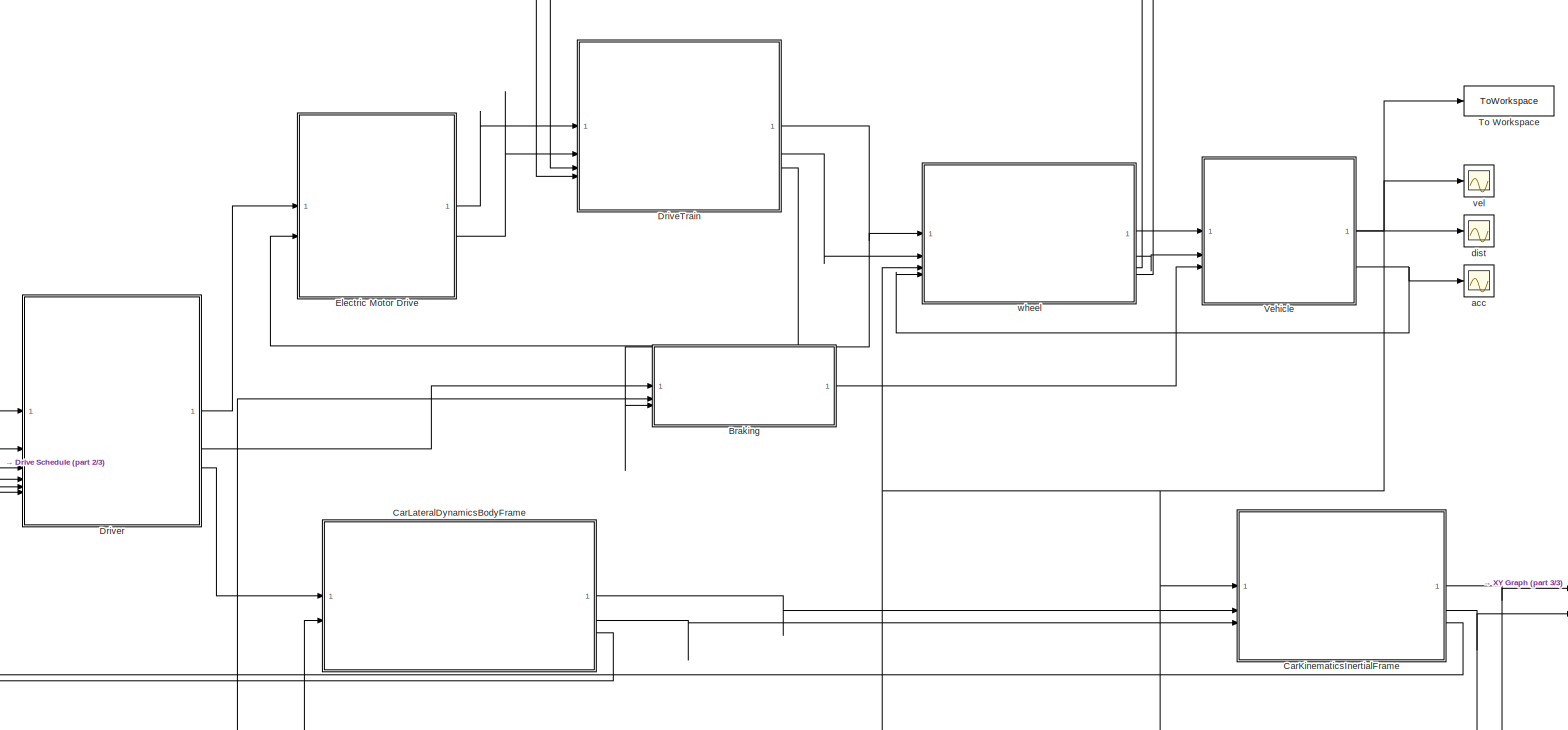
[diagram: root canvas - part 1/3, most of the canvas]
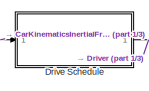
[diagram: root canvas - part 2/3, middle left region]
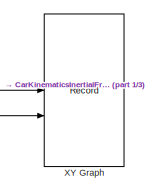
[diagram: root canvas - part 3/3, bottom right region]
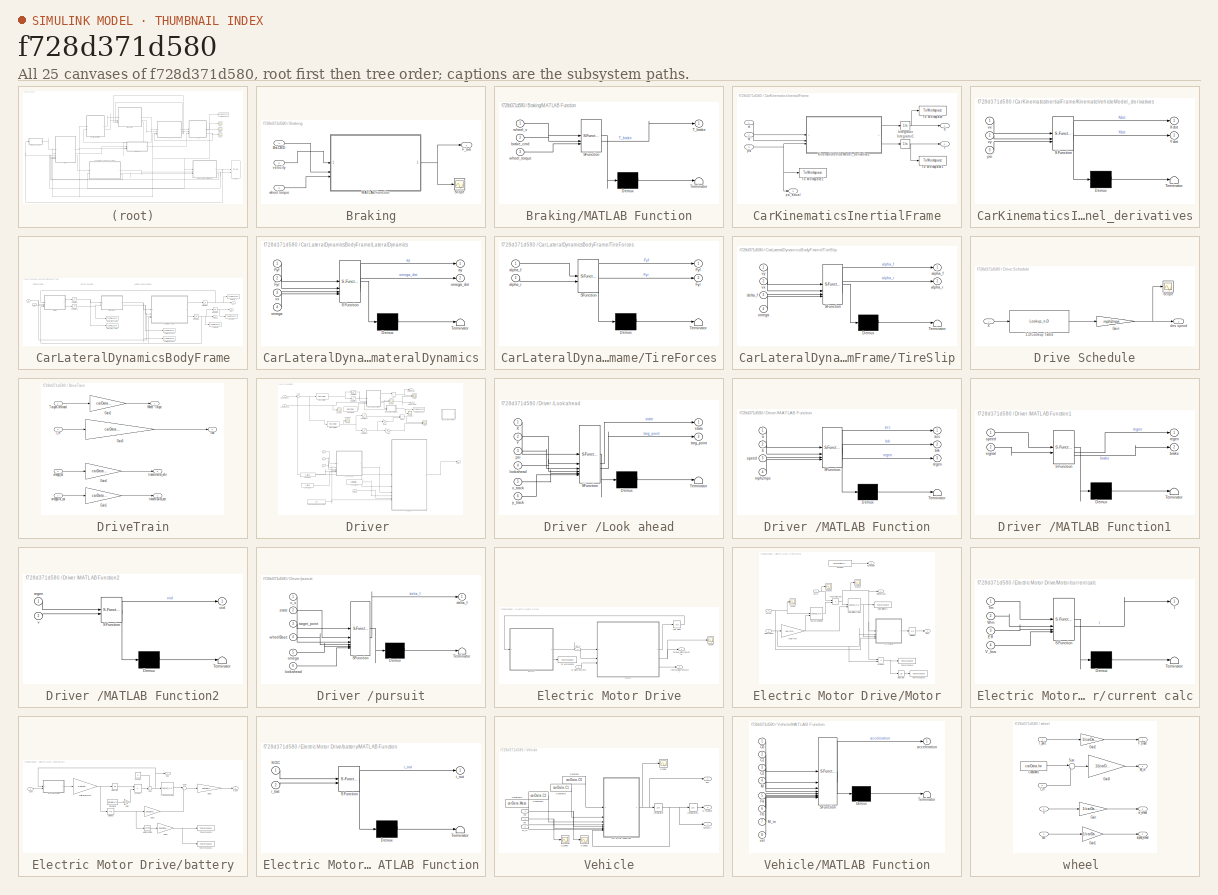
[diagram: thumbnail index - all 25 canvases of the model, root first then tree order]
MODEL slx_f728d371d580
KIND model
CONFIG AbsTol = auto
CONFIG EnableMultiTasking = off
CONFIG FixedStep = 0.01
CONFIG MaxStep = auto
CONFIG MinStep = auto
CONFIG RelTol = 1e-3
CONFIG SampleTimeConstraint = Unconstrained
CONFIG SolverName = FixedStepAuto
CONFIG StartTime = 0.0
CONFIG StopTime = 10
BLOCK [SubSystem] Braking
BLOCK [Inport] Braking/BrkCMD 
BLOCK [Outport] Braking/F_brk 
  VectorParamsAs1DForOutWhenUnconnected = off
BLOCK [SubSystem] Braking/MATLAB Function
  ErrorFcn = Stateflow.Translate.translate
  PermitHierarchicalResolution = ExplicitOnly
  SFBlockType = MATLAB Function
  TreatAsAtomicUnit = on
BLOCK [Demux] Braking/MATLAB Function/ Demux 
  Outputs = 1
BLOCK [S-Function] Braking/MATLAB Function/ SFunction 
  EnableBusSupport = on
  FunctionName = sf_sfun
  PortCounts = [3 2]
  SFcnIsStateOwnerBlock = off
  SFunctionDeploymentMode = off
  Tag = Stateflow S-Function 4
BLOCK [Terminator] Braking/MATLAB Function/ Terminator 
BLOCK [Outport] Braking/MATLAB Function/T_brake
BLOCK [Inport] Braking/MATLAB Function/brake_cmd
  Port = 2
BLOCK [Inport] Braking/MATLAB Function/wheel_torque
  Port = 3
BLOCK [Inport] Braking/MATLAB Function/wheel_v
BLOCK [Scope] Braking/Scope
  Floating = off
  NumInputPorts = 1
  ScopeSpecificationString = Simulink.scopes.TimeScopeBlockCfg('CurrentConfiguration', extmgr.ConfigurationSet(extmgr.Configuration('Core','General UI',true),extmgr.Configuration('Core','Source UI',true),extmgr.Configuration('Sources','WiredSimulink',true,'DataLoggingVariableName','ScopeData1'),extmgr.Configuration('Visuals','Time Domain',true,'SerializedDisplays',{struct('MinYLimReal','-1.00000','MaxYLimReal','1.00000','YLab...<+1405ch>
BLOCK [Inport] Braking/velocity 
  Port = 2
BLOCK [Inport] Braking/wheel torque
  Port = 3
BLOCK [SubSystem] CarKinematicsInertialFrame
BLOCK [Integrator] CarKinematicsInertialFrame/Integrator
  InitialCondition = carData.init.X0
BLOCK [Integrator] CarKinematicsInertialFrame/Integrator1
  InitialCondition = carData.init.Y0
BLOCK [SubSystem] CarKinematicsInertialFrame/KinematicVehicleModel_derivatives
  ErrorFcn = Stateflow.Translate.translate
  PermitHierarchicalResolution = ExplicitOnly
  SFBlockType = MATLAB Function
  TreatAsAtomicUnit = on
BLOCK [Demux] CarKinematicsInertialFrame/KinematicVehicleModel_derivatives/ Demux 
  Outputs = 1
BLOCK [S-Function] CarKinematicsInertialFrame/KinematicVehicleModel_derivatives/ SFunction 
  EnableBusSupport = on
  FunctionName = sf_sfun
  PortCounts = [3 3]
  SFcnIsStateOwnerBlock = off
  SFunctionDeploymentMode = off
  Tag = Stateflow S-Function 3
BLOCK [Terminator] CarKinematicsInertialFrame/KinematicVehicleModel_derivatives/ Terminator 
BLOCK [Outport] CarKinematicsInertialFrame/KinematicVehicleModel_derivatives/Xdot
BLOCK [Outport] CarKinematicsInertialFrame/KinematicVehicleModel_derivatives/Ydot
  Port = 2
BLOCK [Inport] CarKinematicsInertialFrame/KinematicVehicleModel_derivatives/psi
  Port = 3
BLOCK [Inport] CarKinematicsInertialFrame/KinematicVehicleModel_derivatives/vx
BLOCK [Inport] CarKinematicsInertialFrame/KinematicVehicleModel_derivatives/vy
  Port = 2
BLOCK [ToWorkspace] CarKinematicsInertialFrame/To Workspace
  FixptAsFi = on
  MaxDataPoints = inf
  SampleTime = 0.1
  SaveFormat = Timeseries
  VariableName = X_driven
BLOCK [ToWorkspace] CarKinematicsInertialFrame/To Workspace1
  FixptAsFi = on
  MaxDataPoints = inf
  SampleTime = 0.1
  SaveFormat = Timeseries
  VariableName = Y_driven
BLOCK [ToWorkspace] CarKinematicsInertialFrame/To Workspace2
  FixptAsFi = on
  MaxDataPoints = inf
  SampleTime = 0.1
  SaveFormat = Timeseries
  VariableName = Psi_driven
BLOCK [Outport] CarKinematicsInertialFrame/X
BLOCK [Outport] CarKinematicsInertialFrame/Y
  Port = 2
BLOCK [Inport] CarKinematicsInertialFrame/psi
  Port = 3
BLOCK [Outport] CarKinematicsInertialFrame/psi_actual
  Port = 3
BLOCK [Inport] CarKinematicsInertialFrame/vx
BLOCK [Inport] CarKinematicsInertialFrame/vy
  Port = 2
BLOCK [SubSystem] CarLateralDynamicsBodyFrame
BLOCK [ToWorkspace] CarLateralDynamicsBodyFrame/Front_Slip_Angle
  FixptAsFi = on
  MaxDataPoints = inf
  SampleTime = 0.01
  SaveFormat = Timeseries
  VariableName = alpha_f
BLOCK [ToWorkspace] CarLateralDynamicsBodyFrame/Heading
  FixptAsFi = on
  MaxDataPoints = inf
  SampleTime = 0.01
  SaveFormat = Timeseries
  VariableName = psi
BLOCK [Integrator] CarLateralDynamicsBodyFrame/Integrator
  InitialCondition = carData.init.vy0
BLOCK [Integrator] CarLateralDynamicsBodyFrame/Integrator1
  InitialCondition = carData.init.omega0
BLOCK [Integrator] CarLateralDynamicsBodyFrame/Integrator2
  InitialCondition = carData.init.psi0
BLOCK [SubSystem] CarLateralDynamicsBodyFrame/LateralDynamics
  ErrorFcn = Stateflow.Translate.translate
  PermitHierarchicalResolution = ExplicitOnly
  SFBlockType = MATLAB Function
  TreatAsAtomicUnit = on
BLOCK [Demux] CarLateralDynamicsBodyFrame/LateralDynamics/ Demux 
  Outputs = 1
BLOCK [S-Function] CarLateralDynamicsBodyFrame/LateralDynamics/ SFunction 
  EnableBusSupport = on
  FunctionName = sf_sfun
  Parameters = obj
  PortCounts = [4 3]
  SFcnIsStateOwnerBlock = off
  SFunctionDeploymentMode = off
  Tag = Stateflow S-Function 1
BLOCK [Terminator] CarLateralDynamicsBodyFrame/LateralDynamics/ Terminator 
BLOCK [Inport] CarLateralDynamicsBodyFrame/LateralDynamics/Fyf
BLOCK [Inport] CarLateralDynamicsBodyFrame/LateralDynamics/Fyr
  Port = 2
BLOCK [Outport] CarLateralDynamicsBodyFrame/LateralDynamics/ay
BLOCK [Inport] CarLateralDynamicsBodyFrame/LateralDynamics/omega
  Port = 4
BLOCK [Outport] CarLateralDynamicsBodyFrame/LateralDynamics/omega_dot
  Port = 2
BLOCK [Inport] CarLateralDynamicsBodyFrame/LateralDynamics/vx
  Port = 3
BLOCK [ToWorkspace] CarLateralDynamicsBodyFrame/Rear_Slip_Angle
  FixptAsFi = on
  MaxDataPoints = inf
  SampleTime = 0.01
  SaveFormat = Timeseries
  VariableName = alpha_r
BLOCK [Saturate] CarLateralDynamicsBodyFrame/Saturation
  LowerLimit = -carData.maxAlpha
  UpperLimit = carData.maxAlpha
BLOCK [Saturate] CarLateralDynamicsBodyFrame/Saturation1
  LowerLimit = -carData.maxAlpha
  UpperLimit = carData.maxAlpha
BLOCK [SubSystem] CarLateralDynamicsBodyFrame/TireForces
  ErrorFcn = Stateflow.Translate.translate
  PermitHierarchicalResolution = ExplicitOnly
  SFBlockType = MATLAB Function
  TreatAsAtomicUnit = on
BLOCK [Demux] CarLateralDynamicsBodyFrame/TireForces/ Demux 
  Outputs = 1
BLOCK [S-Function] CarLateralDynamicsBodyFrame/TireForces/ SFunction 
  EnableBusSupport = on
  FunctionName = sf_sfun
  Parameters = obj
  PortCounts = [2 3]
  SFcnIsStateOwnerBlock = off
  SFunctionDeploymentMode = off
  Tag = Stateflow S-Function 7
BLOCK [Terminator] CarLateralDynamicsBodyFrame/TireForces/ Terminator 
BLOCK [Outport] CarLateralDynamicsBodyFrame/TireForces/Fyf
BLOCK [Outport] CarLateralDynamicsBodyFrame/TireForces/Fyr
  Port = 2
BLOCK [Inport] CarLateralDynamicsBodyFrame/TireForces/alpha_f
BLOCK [Inport] CarLateralDynamicsBodyFrame/TireForces/alpha_r
  Port = 2
BLOCK [SubSystem] CarLateralDynamicsBodyFrame/TireSlip
  ErrorFcn = Stateflow.Translate.translate
  PermitHierarchicalResolution = ExplicitOnly
  SFBlockType = MATLAB Function
  TreatAsAtomicUnit = on
BLOCK [Demux] CarLateralDynamicsBodyFrame/TireSlip/ Demux 
  Outputs = 1
BLOCK [S-Function] CarLateralDynamicsBodyFrame/TireSlip/ SFunction 
  EnableBusSupport = on
  FunctionName = sf_sfun
  Parameters = obj
  PortCounts = [4 3]
  SFcnIsStateOwnerBlock = off
  SFunctionDeploymentMode = off
  Tag = Stateflow S-Function 6
BLOCK [Terminator] CarLateralDynamicsBodyFrame/TireSlip/ Terminator 
BLOCK [Outport] CarLateralDynamicsBodyFrame/TireSlip/alpha_f
BLOCK [Outport] CarLateralDynamicsBodyFrame/TireSlip/alpha_r
  Port = 2
BLOCK [Inport] CarLateralDynamicsBodyFrame/TireSlip/delta_f
  Port = 3
BLOCK [Inport] CarLateralDynamicsBodyFrame/TireSlip/omega
  Port = 4
BLOCK [Inport] CarLateralDynamicsBodyFrame/TireSlip/vx
  Port = 2
BLOCK [Inport] CarLateralDynamicsBodyFrame/TireSlip/vy
BLOCK [ToWorkspace] CarLateralDynamicsBodyFrame/To Workspace5
  FixptAsFi = on
  MaxDataPoints = inf
  SampleTime = 0.01
  SaveFormat = Timeseries
  VariableName = Fyf
BLOCK [ToWorkspace] CarLateralDynamicsBodyFrame/To Workspace6
  FixptAsFi = on
  MaxDataPoints = inf
  SampleTime = 0.01
  SaveFormat = Timeseries
  VariableName = Fyr
BLOCK [ToWorkspace] CarLateralDynamicsBodyFrame/Velocity_Y
  FixptAsFi = on
  MaxDataPoints = inf
  SampleTime = 0.01
  SaveFormat = Timeseries
  VariableName = vy
BLOCK [ToWorkspace] CarLateralDynamicsBodyFrame/Yaw Rate
  FixptAsFi = on
  MaxDataPoints = inf
  SampleTime = 0.01
  SaveFormat = Timeseries
  VariableName = omega
BLOCK [Inport] CarLateralDynamicsBodyFrame/delta_f
BLOCK [Outport] CarLateralDynamicsBodyFrame/omega
  Port = 3
BLOCK [Outport] CarLateralDynamicsBodyFrame/psi
  Port = 2
BLOCK [Inport] CarLateralDynamicsBodyFrame/vx
  Port = 2
BLOCK [Outport] CarLateralDynamicsBodyFrame/vy
BLOCK [SubSystem] Drive Schedule
BLOCK [Lookup_n-D] Drive Schedule/1-D Lookup Table
  BreakpointsForDimension1 = test_position
  InputPortMap = u0
  InternalRulePriority = Speed
  NumberOfTableDimensions = 1
  RndMeth = Simplest
  Table = test_speed
BLOCK [Gain] Drive Schedule/Gain
  Gain = mph2mps
BLOCK [Scope] Drive Schedule/Scope
  Floating = off
  NumInputPorts = 1
  ScopeSpecificationString = Simulink.scopes.TimeScopeBlockCfg('CurrentConfiguration', extmgr.ConfigurationSet(extmgr.Configuration('Core','General UI',true),extmgr.Configuration('Core','Source UI',true),extmgr.Configuration('Sources','WiredSimulink',true,'DataLoggingVariableName','ScopeData4'),extmgr.Configuration('Visuals','Time Domain',true,'SerializedDisplays',{struct('MinYLimReal','-23.33333','MaxYLimReal','298.88889','Y...<+1439ch>
BLOCK [Inport] Drive Schedule/X
BLOCK [Outport] Drive Schedule/des speed 
  VectorParamsAs1DForOutWhenUnconnected = off
BLOCK [SubSystem] DriveTrain
BLOCK [Gain] DriveTrain/Gain1
  Gain = carData.FDG
BLOCK [Gain] DriveTrain/Gain2
  Gain = carData.FDG
BLOCK [Gain] DriveTrain/Gain3
  Gain = carData.FDG*carData.FDG
BLOCK [Gain] DriveTrain/Gain4
  Gain = carData.FDG
BLOCK [Inport] DriveTrain/I_in
  Port = 2
BLOCK [Outport] DriveTrain/Iout
  Port = 2
BLOCK [Inport] DriveTrain/TorqueCommand
BLOCK [Outport] DriveTrain/Wheel Torque
BLOCK [Inport] DriveTrain/omegaDot_out
  Port = 4
BLOCK [Inport] DriveTrain/omega_out
  Port = 3
BLOCK [Outport] DriveTrain/transmission_acc
  Port = 4
BLOCK [Outport] DriveTrain/transmission_velo
  Port = 3
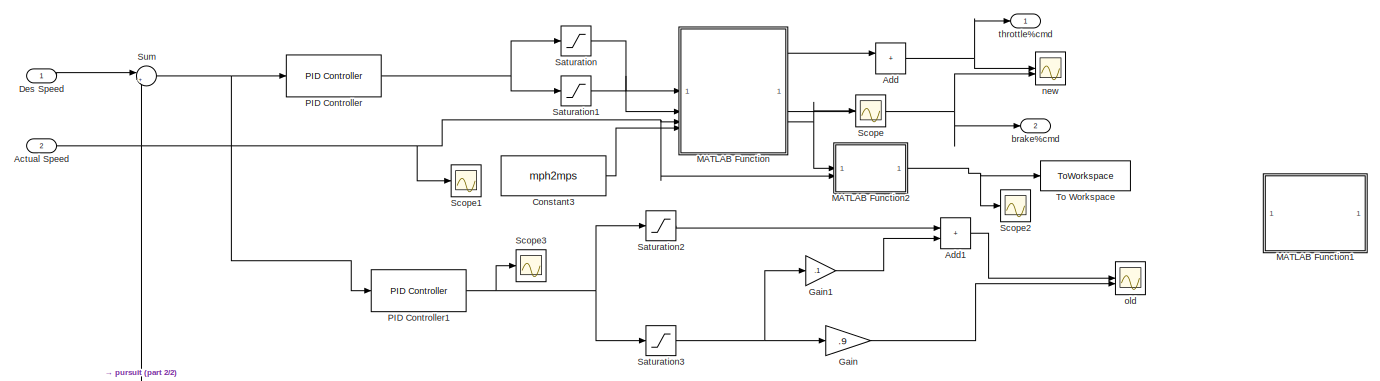
[diagram: Driver  - part 1/2, full width, top band]
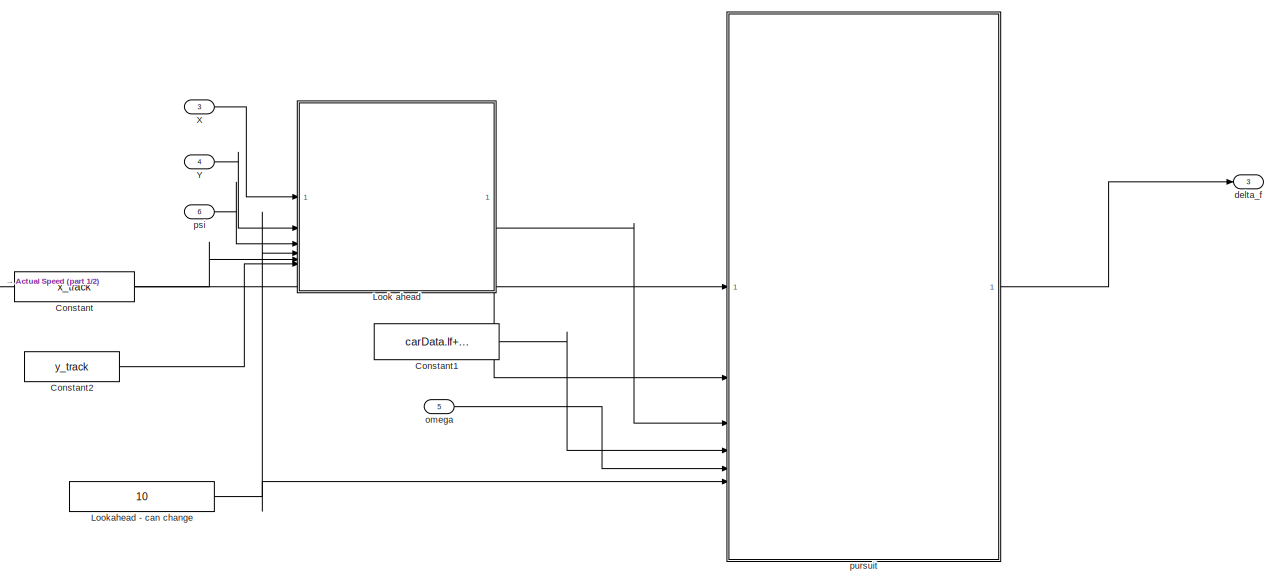
[diagram: Driver  - part 2/2, full width, bottom band]
BLOCK [SubSystem] Driver 
BLOCK [Inport] Driver /Actual Speed
  Port = 2
BLOCK [Sum] Driver /Add
  IconShape = rectangular
BLOCK [Sum] Driver /Add1
  Commented = on
  IconShape = rectangular
BLOCK [Constant] Driver /Constant
  Value = x_track
BLOCK [Constant] Driver /Constant1
  Value = carData.lf+carData.lr
BLOCK [Constant] Driver /Constant2
  Value = y_track
BLOCK [Constant] Driver /Constant3
  Value = mph2mps
BLOCK [Inport] Driver /Des Speed 
BLOCK [Gain] Driver /Gain
  Commented = on
  Gain = .9
BLOCK [Gain] Driver /Gain1
  Commented = on
  Gain = .1
BLOCK [SubSystem] Driver /Look ahead
  ErrorFcn = Stateflow.Translate.translate
  PermitHierarchicalResolution = ExplicitOnly
  SFBlockType = MATLAB Function
  TreatAsAtomicUnit = on
BLOCK [Demux] Driver /Look ahead/ Demux 
  Outputs = 1
BLOCK [S-Function] Driver /Look ahead/ SFunction 
  EnableBusSupport = on
  FunctionName = sf_sfun
  PortCounts = [6 3]
  SFcnIsStateOwnerBlock = off
  SFunctionDeploymentMode = off
  Tag = Stateflow S-Function 10
BLOCK [Terminator] Driver /Look ahead/ Terminator 
BLOCK [Inport] Driver /Look ahead/X
BLOCK [Inport] Driver /Look ahead/Y
  Port = 2
BLOCK [Inport] Driver /Look ahead/lookahead
  Port = 4
BLOCK [Inport] Driver /Look ahead/psi
  Port = 3
BLOCK [Outport] Driver /Look ahead/state
BLOCK [Outport] Driver /Look ahead/targ_point
  Port = 2
BLOCK [Inport] Driver /Look ahead/x_track
  Port = 5
BLOCK [Inport] Driver /Look ahead/y_track
  Port = 6
BLOCK [Constant] Driver /Lookahead - can change
  Value = 10
BLOCK [SubSystem] Driver /MATLAB Function
  ErrorFcn = Stateflow.Translate.translate
  PermitHierarchicalResolution = ExplicitOnly
  SFBlockType = MATLAB Function
  TreatAsAtomicUnit = on
BLOCK [Demux] Driver /MATLAB Function/ Demux 
  Outputs = 1
BLOCK [S-Function] Driver /MATLAB Function/ SFunction 
  EnableBusSupport = on
  FunctionName = sf_sfun
  PortCounts = [4 4]
  SFcnIsStateOwnerBlock = off
  SFunctionDeploymentMode = off
  Tag = Stateflow S-Function 9
BLOCK [Terminator] Driver /MATLAB Function/ Terminator 
BLOCK [Inport] Driver /MATLAB Function/a
BLOCK [Outport] Driver /MATLAB Function/acc
BLOCK [Inport] Driver /MATLAB Function/b
  Port = 2
BLOCK [Outport] Driver /MATLAB Function/brk
  Port = 2
BLOCK [Inport] Driver /MATLAB Function/mph2mps
  Port = 4
BLOCK [Outport] Driver /MATLAB Function/regen
  Port = 3
BLOCK [Inport] Driver /MATLAB Function/speed
  Port = 3
BLOCK [SubSystem] Driver /MATLAB Function1
  Commented = on
  ErrorFcn = Stateflow.Translate.translate
  PermitHierarchicalResolution = ExplicitOnly
  SFBlockType = MATLAB Function
  TreatAsAtomicUnit = on
BLOCK [Demux] Driver /MATLAB Function1/ Demux 
  Outputs = 1
BLOCK [S-Function] Driver /MATLAB Function1/ SFunction 
  EnableBusSupport = on
  FunctionName = sf_sfun
  PortCounts = [2 3]
  SFcnIsStateOwnerBlock = off
  SFunctionDeploymentMode = off
  Tag = Stateflow S-Function 12
BLOCK [Terminator] Driver /MATLAB Function1/ Terminator 
BLOCK [Outport] Driver /MATLAB Function1/brake
  Port = 2
BLOCK [Outport] Driver /MATLAB Function1/regen
BLOCK [Inport] Driver /MATLAB Function1/signal
  Port = 2
BLOCK [Inport] Driver /MATLAB Function1/speed
BLOCK [SubSystem] Driver /MATLAB Function2
  ErrorFcn = Stateflow.Translate.translate
  PermitHierarchicalResolution = ExplicitOnly
  SFBlockType = MATLAB Function
  TreatAsAtomicUnit = on
BLOCK [Demux] Driver /MATLAB Function2/ Demux 
  Outputs = 1
BLOCK [S-Function] Driver /MATLAB Function2/ SFunction 
  EnableBusSupport = on
  FunctionName = sf_sfun
  PortCounts = [2 2]
  SFcnIsStateOwnerBlock = off
  SFunctionDeploymentMode = off
  Tag = Stateflow S-Function 13
BLOCK [Terminator] Driver /MATLAB Function2/ Terminator 
BLOCK [Inport] Driver /MATLAB Function2/regen
BLOCK [Inport] Driver /MATLAB Function2/v
  Port = 2
BLOCK [Outport] Driver /MATLAB Function2/viol
BLOCK [Reference] Driver /PID Controller  REF=slpidlib/PID Controller
  SourceBlock = slpidlib/PID Controller
  SourceType = PID 1dof
BLOCK [Reference] Driver /PID Controller1  REF=slpidlib/PID Controller
  Commented = on
  SourceBlock = slpidlib/PID Controller
  SourceType = PID 1dof
BLOCK [Saturate] Driver /Saturation
  LowerLimit = 0
  UpperLimit = 1
BLOCK [Saturate] Driver /Saturation1
  LowerLimit = -1
  UpperLimit = 0
BLOCK [Saturate] Driver /Saturation2
  Commented = on
  LowerLimit = 0
  UpperLimit = 1
BLOCK [Saturate] Driver /Saturation3
  Commented = on
  LowerLimit = -1
  UpperLimit = 0
BLOCK [Scope] Driver /Scope
  Commented = on
  Floating = off
  NumInputPorts = 1
  ScopeSpecificationString = Simulink.scopes.TimeScopeBlockCfg('CurrentConfiguration', extmgr.ConfigurationSet(extmgr.Configuration('Core','General UI',true),extmgr.Configuration('Core','Source UI',true),extmgr.Configuration('Sources','WiredSimulink',true,'DataLoggingVariableName','ScopeData8'),extmgr.Configuration('Visuals','Time Domain',true,'SerializedDisplays',{struct('MinYLimReal','-0.03719','MaxYLimReal','0.33472','YLab...<+1467ch>
BLOCK [Scope] Driver /Scope1
  Commented = on
  Floating = off
  NumInputPorts = 1
  ScopeSpecificationString = Simulink.scopes.TimeScopeBlockCfg('CurrentConfiguration', extmgr.ConfigurationSet(extmgr.Configuration('Core','General UI',true),extmgr.Configuration('Core','Source UI',true),extmgr.Configuration('Sources','WiredSimulink',true,'DataLoggingVariableName','ScopeData2'),extmgr.Configuration('Visuals','Time Domain',true,'SerializedDisplays',{struct('MinYLimReal','-1.40797','MaxYLimReal','12.67176','YLa...<+1427ch>
BLOCK [Scope] Driver /Scope2
  Commented = on
  Floating = off
  NumInputPorts = 1
  ScopeSpecificationString = Simulink.scopes.TimeScopeBlockCfg('CurrentConfiguration', extmgr.ConfigurationSet(extmgr.Configuration('Core','General UI',true),extmgr.Configuration('Core','Source UI',true),extmgr.Configuration('Sources','WiredSimulink',true,'DataLoggingVariableName','ScopeData9'),extmgr.Configuration('Visuals','Time Domain',true,'SerializedDisplays',{struct('MinYLimReal','-0.125','MaxYLimReal','1.125','YLabelRe...<+1415ch>
BLOCK [Scope] Driver /Scope3
  Commented = on
  Floating = off
  NumInputPorts = 1
  ScopeSpecificationString = Simulink.scopes.TimeScopeBlockCfg('CurrentConfiguration', extmgr.ConfigurationSet(extmgr.Configuration('Core','General UI',true),extmgr.Configuration('Core','Source UI',true),extmgr.Configuration('Sources','WiredSimulink',true,'DataLoggingVariableName','ScopeData7'),extmgr.Configuration('Visuals','Time Domain',true,'SerializedDisplays',{struct('MinYLimReal','-0.39088','MaxYLimReal','1.15454','YLab...<+1405ch>
BLOCK [Sum] Driver /Sum
  Inputs = |+-
BLOCK [ToWorkspace] Driver /To Workspace
  FixptAsFi = on
  MaxDataPoints = inf
  SampleTime = 0.01
  SaveFormat = Timeseries
  VariableName = brake_viol
BLOCK [Inport] Driver /X
  Port = 3
BLOCK [Inport] Driver /Y
  Port = 4
BLOCK [Outport] Driver /brake%cmd 
  Port = 2
BLOCK [Outport] Driver /delta_f
  NameLocation = right
  Port = 3
BLOCK [Scope] Driver /new
  Floating = off
  NumInputPorts = 2
  ScopeSpecificationString = Simulink.scopes.TimeScopeBlockCfg('CurrentConfiguration', extmgr.ConfigurationSet(extmgr.Configuration('Core','General UI',true),extmgr.Configuration('Core','Source UI',true),extmgr.Configuration('Sources','WiredSimulink',true,'DataLoggingVariableName','ScopeData1'),extmgr.Configuration('Visuals','Time Domain',true,'SerializedDisplays',{struct('MinYLimReal','-0.125','MaxYLimReal','1.125','YLabelRe...<+1448ch>
BLOCK [Scope] Driver /old
  Commented = on
  Floating = off
  NumInputPorts = 2
  ScopeSpecificationString = Simulink.scopes.TimeScopeBlockCfg('CurrentConfiguration', extmgr.ConfigurationSet(extmgr.Configuration('Core','General UI',true),extmgr.Configuration('Core','Source UI',true),extmgr.Configuration('Sources','WiredSimulink',true,'DataLoggingVariableName','ScopeData6'),extmgr.Configuration('Visuals','Time Domain',true,'SerializedDisplays',{struct('MinYLimReal','-0.36429','MaxYLimReal','1.15159','YLab...<+1446ch>
BLOCK [Inport] Driver /omega
  Port = 5
BLOCK [Inport] Driver /psi
  Port = 6
BLOCK [SubSystem] Driver /pursuit
  ErrorFcn = Stateflow.Translate.translate
  PermitHierarchicalResolution = ExplicitOnly
  SFBlockType = MATLAB Function
  TreatAsAtomicUnit = on
BLOCK [Demux] Driver /pursuit/ Demux 
  Outputs = 1
BLOCK [S-Function] Driver /pursuit/ SFunction 
  EnableBusSupport = on
  FunctionName = sf_sfun
  PortCounts = [6 2]
  SFcnIsStateOwnerBlock = off
  SFunctionDeploymentMode = off
  Tag = Stateflow S-Function 2
BLOCK [Terminator] Driver /pursuit/ Terminator 
BLOCK [Outport] Driver /pursuit/delta_f
BLOCK [Inport] Driver /pursuit/lookahead
  Port = 6
BLOCK [Inport] Driver /pursuit/omega
  Port = 5
BLOCK [Inport] Driver /pursuit/state
  Port = 2
BLOCK [Inport] Driver /pursuit/target_point
  Port = 3
BLOCK [Inport] Driver /pursuit/v_x
BLOCK [Inport] Driver /pursuit/wheelBase
  Port = 4
BLOCK [Outport] Driver /throttle%cmd
BLOCK [SubSystem] Electric Motor Drive
  TreatAsAtomicUnit = on
BLOCK [Inport] Electric Motor Drive/APP %
BLOCK [Outport] Electric Motor Drive/Inertia_ElectricMotor
  Port = 2
BLOCK [SubSystem] Electric Motor Drive/Motor
  TreatAsAtomicUnit = on
BLOCK [Constant] Electric Motor Drive/Motor/Constant
  Value = motorData.Inertia
BLOCK [Outport] Electric Motor Drive/Motor/I bus
BLOCK [Integrator] Electric Motor Drive/Motor/Integrator
BLOCK [Product] Electric Motor Drive/Motor/Product
BLOCK [Scope] Electric Motor Drive/Motor/Scope
  Floating = off
  NumInputPorts = 1
  ScopeSpecificationString = Simulink.scopes.TimeScopeBlockCfg('CurrentConfiguration', extmgr.ConfigurationSet(extmgr.Configuration('Core','General UI',true),extmgr.Configuration('Core','Source UI',true),extmgr.Configuration('Sources','WiredSimulink',true,'DataLoggingVariableName','ScopeData3'),extmgr.Configuration('Visuals','Time Domain',true,'SerializedDisplays',{struct('MinYLimReal','372.93115','MaxYLimReal','379.89654','Y...<+1412ch>
BLOCK [Scope] Electric Motor Drive/Motor/Scope1
  Floating = off
  NumInputPorts = 1
  ScopeSpecificationString = Simulink.scopes.TimeScopeBlockCfg('CurrentConfiguration', extmgr.ConfigurationSet(extmgr.Configuration('Core','General UI',true),extmgr.Configuration('Core','Source UI',true),extmgr.Configuration('Sources','WiredSimulink',true,'DataLoggingVariableName','ScopeData4'),extmgr.Configuration('Visuals','Time Domain',true,'SerializedDisplays',{struct('MinYLimReal','-35.00000','MaxYLimReal','315.00000','Y...<+1414ch>
BLOCK [Scope] Electric Motor Drive/Motor/Scope2
  Floating = off
  NumInputPorts = 1
  ScopeSpecificationString = Simulink.scopes.TimeScopeBlockCfg('CurrentConfiguration', extmgr.ConfigurationSet(extmgr.Configuration('Core','General UI',true),extmgr.Configuration('Core','Source UI',true),extmgr.Configuration('Sources','WiredSimulink',true,'DataLoggingVariableName','ScopeData5'),extmgr.Configuration('Visuals','Time Domain',true,'SerializedDisplays',{struct('MinYLimReal','-0.125','MaxYLimReal','1.125','YLabelRe...<+1415ch>
BLOCK [ToWorkspace] Electric Motor Drive/Motor/To Workspace
  FixptAsFi = on
  MaxDataPoints = inf
  SampleTime = 0.01
  SaveFormat = Timeseries
  VariableName = motor_power
BLOCK [ToWorkspace] Electric Motor Drive/Motor/To Workspace1
  FixptAsFi = on
  MaxDataPoints = inf
  SampleTime = 0.01
  SaveFormat = Timeseries
  VariableName = motor_energy
BLOCK [UnitDelay] Electric Motor Drive/Motor/Unit Delay
  HasFrameUpgradeWarning = on
  SampleTime = -1
BLOCK [Inport] Electric Motor Drive/Motor/acc%
  Port = 2
BLOCK [Inport] Electric Motor Drive/Motor/bus volt
BLOCK [SubSystem] Electric Motor Drive/Motor/current calc
  ErrorFcn = Stateflow.Translate.translate
  PermitHierarchicalResolution = ExplicitOnly
  SFBlockType = MATLAB Function
  TreatAsAtomicUnit = on
BLOCK [Demux] Electric Motor Drive/Motor/current calc/ Demux 
  Outputs = 1
BLOCK [S-Function] Electric Motor Drive/Motor/current calc/ SFunction 
  EnableBusSupport = on
  FunctionName = sf_sfun
  PortCounts = [4 2]
  SFcnIsStateOwnerBlock = off
  SFunctionDeploymentMode = off
  Tag = Stateflow S-Function 5
BLOCK [Terminator] Electric Motor Drive/Motor/current calc/ Terminator 
BLOCK [Inport] Electric Motor Drive/Motor/current calc/Eff
  Port = 3
BLOCK [Outport] Electric Motor Drive/Motor/current calc/I
BLOCK [Inport] Electric Motor Drive/Motor/current calc/Tm
BLOCK [Inport] Electric Motor Drive/Motor/current calc/V_bus
  Port = 4
BLOCK [Inport] Electric Motor Drive/Motor/current calc/Wm
  Port = 2
BLOCK [Outport] Electric Motor Drive/Motor/inertia motor
  Port = 3
BLOCK [Lookup_n-D] Electric Motor Drive/Motor/max-torque table
  BreakpointsForDimension1 = motorData.vbus
  BreakpointsForDimension2 = motorData.rpm
  BreakpointsForDimension3 = [5, 7]
  InputPortMap = u0,u1
  InternalRulePriority = Speed
  RndMeth = Simplest
  Table = motorData.maxtorque
BLOCK [ToWorkspace] Electric Motor Drive/Motor/motor efficiency
  FixptAsFi = on
  MaxDataPoints = inf
  SampleTime = 0.01
  SaveFormat = Timeseries
  VariableName = motor_efficiency
BLOCK [Lookup_n-D] Electric Motor Drive/Motor/motor efficiency table
  BreakpointsForDimension1 = motorData.eta_torque
  BreakpointsForDimension2 = motorData.eta_speed
  BreakpointsForDimension3 = [5, 7]
  InputPortMap = u0,u1
  InternalRulePriority = Speed
  RndMeth = Simplest
  Table = motorData.eta_val
BLOCK [Inport] Electric Motor Drive/Motor/motor speed
  Port = 3
BLOCK [Outport] Electric Motor Drive/Motor/motor torque
  Port = 2
BLOCK [Gain] Electric Motor Drive/Motor/rad//s>rpm
  Gain = 60/(2*pi)
BLOCK [Product] Electric Motor Drive/Motor/reduced torque
BLOCK [Scope] Electric Motor Drive/Scope
  Floating = off
  NumInputPorts = 1
  ScopeSpecificationString = Simulink.scopes.TimeScopeBlockCfg('CurrentConfiguration', extmgr.ConfigurationSet(extmgr.Configuration('Core','General UI',true),extmgr.Configuration('Core','Source UI',true),extmgr.Configuration('Sources','WiredSimulink',true),extmgr.Configuration('Visuals','Time Domain',true,'SerializedDisplays',{struct('MinYLimReal','-35.00000','MaxYLimReal','315.00000','YLabelReal','','MinYLimMag','0.00000','M...<+1370ch>
BLOCK [ToWorkspace] Electric Motor Drive/To Workspace
  FixptAsFi = on
  MaxDataPoints = inf
  SampleTime = 0.01
  SaveFormat = Timeseries
  VariableName = SOC
BLOCK [Outport] Electric Motor Drive/Torque_ElectricMotor
BLOCK [UnitDelay] Electric Motor Drive/Unit Delay
  HasFrameUpgradeWarning = on
  SampleTime = -1
BLOCK [Inport] Electric Motor Drive/W_ElectricMotor
  Port = 2
BLOCK [SubSystem] Electric Motor Drive/battery
  TreatAsAtomicUnit = on
BLOCK [Constant] Electric Motor Drive/battery/Constant
  Value = .8
BLOCK [Constant] Electric Motor Drive/battery/Constant1
  Value = batData.C
BLOCK [Gain] Electric Motor Drive/battery/Gain
  Gain = 3600/batData.numParallel
BLOCK [Gain] Electric Motor Drive/battery/Gain1
  Gain = batData.Rint
BLOCK [Gain] Electric Motor Drive/battery/Gain2
  Gain = batData.numSeries
BLOCK [Gain] Electric Motor Drive/battery/Gain3
  Gain = batData.Rint
BLOCK [Inport] Electric Motor Drive/battery/I_bat
BLOCK [Integrator] Electric Motor Drive/battery/Integrator
BLOCK [SubSystem] Electric Motor Drive/battery/MATLAB Function
  ErrorFcn = Stateflow.Translate.translate
  PermitHierarchicalResolution = ExplicitOnly
  SFBlockType = MATLAB Function
  TreatAsAtomicUnit = on
BLOCK [Demux] Electric Motor Drive/battery/MATLAB Function/ Demux 
  Outputs = 1
BLOCK [S-Function] Electric Motor Drive/battery/MATLAB Function/ SFunction 
  EnableBusSupport = on
  FunctionName = sf_sfun
  PortCounts = [2 2]
  SFcnIsStateOwnerBlock = off
  SFunctionDeploymentMode = off
  Tag = Stateflow S-Function 11
BLOCK [Terminator] Electric Motor Drive/battery/MATLAB Function/ Terminator 
BLOCK [Inport] Electric Motor Drive/battery/MATLAB Function/SOC
BLOCK [Inport] Electric Motor Drive/battery/MATLAB Function/i_bat
  Port = 2
BLOCK [Outport] Electric Motor Drive/battery/MATLAB Function/i_out
BLOCK [Math] Electric Motor Drive/battery/Math Function
  Operator = square
BLOCK [Product] Electric Motor Drive/battery/Product
  Inputs = */
BLOCK [Outport] Electric Motor Drive/battery/SOC
  Port = 2
BLOCK [Sum] Electric Motor Drive/battery/Sum
  Inputs = +-|
BLOCK [Sum] Electric Motor Drive/battery/Sum1
  Inputs = |+-
BLOCK [ToWorkspace] Electric Motor Drive/battery/To Workspace
  FixptAsFi = on
  MaxDataPoints = inf
  SampleTime = 0.01
  SaveFormat = Timeseries
  VariableName = battery_power_loss
BLOCK [ToWorkspace] Electric Motor Drive/battery/To Workspace1
  FixptAsFi = on
  MaxDataPoints = inf
  SampleTime = 0.01
  SaveFormat = Timeseries
  VariableName = battery_energy_loss
BLOCK [UnitDelay] Electric Motor Drive/battery/Unit Delay
  HasFrameUpgradeWarning = on
  SampleTime = -1
BLOCK [Gain] Electric Motor Drive/battery/batteries in series
  Gain = 1/batData.numParallel
BLOCK [Lookup_n-D] Electric Motor Drive/battery/n-D Lookup Table
  BreakpointsForDimension1 = batData.SOC
  BreakpointsForDimension3 = [5, 7]
  InputPortMap = u0
  InternalRulePriority = Speed
  NumberOfTableDimensions = 1
  RndMeth = Simplest
  Table = batData.OCV
BLOCK [Outport] Electric Motor Drive/battery/v_bat
BLOCK [ToWorkspace] To Workspace
  FixptAsFi = on
  MaxDataPoints = inf
  SampleTime = 0.01
  SaveFormat = Timeseries
  VariableName = vel
BLOCK [SubSystem] Vehicle
BLOCK [Constant] Vehicle/Constant
  Value = carData.C0
BLOCK [Constant] Vehicle/Constant1
  Value = carData.C1
BLOCK [Constant] Vehicle/Constant2
  Value = carData.C2
BLOCK [Constant] Vehicle/Constant3
  Value = carData.Mass
BLOCK [Outport] Vehicle/Distance 
  Port = 2
  VectorParamsAs1DForOutWhenUnconnected = off
BLOCK [Inport] Vehicle/Fb 
  Port = 3
BLOCK [Inport] Vehicle/Fw 
BLOCK [Integrator] Vehicle/Integrator
  LimitOutput = on
  LowerSaturationLimit = 0
BLOCK [Integrator] Vehicle/Integrator1
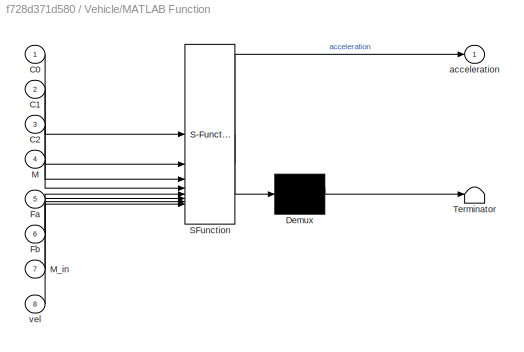
BLOCK [SubSystem] Vehicle/MATLAB Function
  ErrorFcn = Stateflow.Translate.translate
  PermitHierarchicalResolution = ExplicitOnly
  SFBlockType = MATLAB Function
  TreatAsAtomicUnit = on
BLOCK [Demux] Vehicle/MATLAB Function/ Demux 
  Outputs = 1
BLOCK [S-Function] Vehicle/MATLAB Function/ SFunction 
  EnableBusSupport = on
  FunctionName = sf_sfun
  PortCounts = [8 2]
  SFcnIsStateOwnerBlock = off
  SFunctionDeploymentMode = off
  Tag = Stateflow S-Function 8
BLOCK [Terminator] Vehicle/MATLAB Function/ Terminator 
BLOCK [Inport] Vehicle/MATLAB Function/C0
BLOCK [Inport] Vehicle/MATLAB Function/C1
  Port = 2
BLOCK [Inport] Vehicle/MATLAB Function/C2
  Port = 3
BLOCK [Inport] Vehicle/MATLAB Function/Fa
  Port = 5
BLOCK [Inport] Vehicle/MATLAB Function/Fb
  Port = 6
BLOCK [Inport] Vehicle/MATLAB Function/M
  Port = 4
BLOCK [Inport] Vehicle/MATLAB Function/M_in
  Port = 7
BLOCK [Outport] Vehicle/MATLAB Function/acceleration
  VectorParamsAs1DForOutWhenUnconnected = off
BLOCK [Inport] Vehicle/MATLAB Function/vel
  Port = 8
BLOCK [Inport] Vehicle/M_in 
  Port = 2
BLOCK [Scope] Vehicle/Scope
  Floating = off
  NumInputPorts = 1
  ScopeSpecificationString = Simulink.scopes.TimeScopeBlockCfg('CurrentConfiguration', extmgr.ConfigurationSet(extmgr.Configuration('Core','General UI',true),extmgr.Configuration('Core','Source UI',true),extmgr.Configuration('Sources','WiredSimulink',true),extmgr.Configuration('Visuals','Time Domain',true,'SerializedDisplays',{struct('MinYLimReal','-0.28219','MaxYLimReal','2.42052','YLabelReal','','MinYLimMag','0.00000','MaxY...<+1366ch>
BLOCK [Scope] Vehicle/Scope1
  Floating = off
  NumInputPorts = 1
  ScopeSpecificationString = Simulink.scopes.TimeScopeBlockCfg
BLOCK [Scope] Vehicle/Scope2
  Floating = off
  NumInputPorts = 1
  ScopeSpecificationString = Simulink.scopes.TimeScopeBlockCfg('CurrentConfiguration', extmgr.ConfigurationSet(extmgr.Configuration('Core','General UI',true),extmgr.Configuration('Core','Source UI',true),extmgr.Configuration('Sources','WiredSimulink',true),extmgr.Configuration('Visuals','Time Domain',true,'SerializedDisplays',{struct('MinYLimReal','-291.66667','MaxYLimReal','2625.00000','YLabelReal','','MinYLimMag',' 0.00000'...<+1372ch>
BLOCK [Outport] Vehicle/acc
  Port = 3
BLOCK [Outport] Vehicle/velocity 
  VectorParamsAs1DForOutWhenUnconnected = off
BLOCK [Record] XY Graph
  CompatibilityTag = XY
  FileSettingsInternal = {"entries":[{"content":{"excelSettings":{"content":{},"type":"Streamout.ExcelSettings"}},"type":"Streamout.FileSettingStorage","uuid":""}],"packageUris":["http:\/\/schema.mathworks.com\/mf0\/streamout_blocks\/R2020a"],"version":"1.0"}
  Layout = [1 1]
  SignalsInternal = {"entries":[{"content":{"signals":[{"content":{"blockPath":[],"dimensions":[1],"domain":"","lineColor":"#a2142f","plots":[1],"port":1,"sid":[""],"signalID":43985,"signalName":"CarKinematicsInertialFrame:1"},"type":"RecordBlkView.Signal","uuid":""},{"content":{"blockPath":[],"dimensions":[1],"domain":"","lineColor":"#139fff","plots":[1],"port":2,"sid":[""],"signalID":43989,"signalName":"CarKinemati...<+206ch>
  VisualizationBindings = {"xyplotplugin":{"info":[{"series":[{"bindingParametersList":[{"parameter":"X-Axis","signalID":43985,"signalName":"CarKinematicsInertialFrame:1"},{"parameter":"Y-Axis","signalID":43989,"signalName":"CarKinematicsInertialFrame:2"}],"seriesID":61081}],"subplotID":1}]}}
  st = -1
BLOCK [Scope] acc
  Floating = off
  NumInputPorts = 1
  ScopeSpecificationString = Simulink.scopes.TimeScopeBlockCfg('CurrentConfiguration', extmgr.ConfigurationSet(extmgr.Configuration('Core','General UI',true),extmgr.Configuration('Core','Source UI',true),extmgr.Configuration('Sources','WiredSimulink',true,'DataLoggingVariableName','ScopeData2'),extmgr.Configuration('Visuals','Time Domain',true,'SerializedDisplays',{struct('MinYLimReal','-0.28219','MaxYLimReal','2.42052','YLab...<+1412ch>
BLOCK [Scope] dist
  Floating = off
  NumInputPorts = 1
  ScopeSpecificationString = Simulink.scopes.TimeScopeBlockCfg('CurrentConfiguration', extmgr.ConfigurationSet(extmgr.Configuration('Core','General UI',true),extmgr.Configuration('Core','Source UI',true),extmgr.Configuration('Sources','WiredSimulink',true,'DataLoggingVariableName','ScopeData3'),extmgr.Configuration('Visuals','Time Domain',true,'SerializedDisplays',{struct('MinYLimReal','-55.55052','MaxYLimReal','499.95468','Y...<+1409ch>
BLOCK [Scope] vel
  Floating = off
  NumInputPorts = 1
  ScopeSpecificationString = Simulink.scopes.TimeScopeBlockCfg('CurrentConfiguration', extmgr.ConfigurationSet(extmgr.Configuration('Core','General UI',true),extmgr.Configuration('Core','Source UI',true),extmgr.Configuration('Sources','WiredSimulink',true,'DataLoggingVariableName','ScopeData4'),extmgr.Configuration('Visuals','Time Domain',true,'SerializedDisplays',{struct('MinYLimReal','-0.62679','MaxYLimReal','5.64108','YLab...<+1399ch>
BLOCK [SubSystem] wheel 
BLOCK [Constant] wheel /Constant6
  Value = carData.Iw
BLOCK [Outport] wheel /F_track
BLOCK [Gain] wheel /Gain
  Gain = 1/carData.r
BLOCK [Gain] wheel /Gain1
  Gain = 1/carData.r
BLOCK [Gain] wheel /Gain2
  Gain = 1/carData.r
BLOCK [Gain] wheel /Gain3
  Gain = 1/(carData.r*carData.r)
BLOCK [Inport] wheel /I_in
  Port = 2
BLOCK [Outport] wheel /M_in
  Port = 2
BLOCK [Sum] wheel /Sum
  Inputs = |++
BLOCK [Inport] wheel /T_axle
BLOCK [Inport] wheel /V
  Port = 3
BLOCK [Inport] wheel /acc
  Port = 4
BLOCK [Outport] wheel /alpha_wheel
  Port = 4
BLOCK [Outport] wheel /w_wheel
  Port = 3
ANNOTATION CarLateralDynamicsBodyFrame: Lateral Dynamic Calculations
ANNOTATION CarLateralDynamicsBodyFrame: Tire Force Calculation
ANNOTATION CarLateralDynamicsBodyFrame: Tire Slip Calculation
LINE Braking/BrkCMD :1 -> Braking/MATLAB Function:2
NET Braking/MATLAB Function:1 -> Braking/F_brk :1, Braking/Scope:1
LINE Braking/velocity :1 -> Braking/MATLAB Function:1
LINE Braking/wheel torque:1 -> Braking/MATLAB Function:3
LINE Braking:1 -> Vehicle:3
NET CarKinematicsInertialFrame/Integrator1:1 -> CarKinematicsInertialFrame/To Workspace1:1, CarKinematicsInertialFrame/Y:1
NET CarKinematicsInertialFrame/Integrator:1 -> CarKinematicsInertialFrame/To Workspace:1, CarKinematicsInertialFrame/X:1
LINE CarKinematicsInertialFrame/KinematicVehicleModel_derivatives:1 -> CarKinematicsInertialFrame/Integrator:1
LINE CarKinematicsInertialFrame/KinematicVehicleModel_derivatives:2 -> CarKinematicsInertialFrame/Integrator1:1
NET CarKinematicsInertialFrame/psi:1 -> CarKinematicsInertialFrame/KinematicVehicleModel_derivatives:3, CarKinematicsInertialFrame/To Workspace2:1, CarKinematicsInertialFrame/psi_actual:1
LINE CarKinematicsInertialFrame/vx:1 -> CarKinematicsInertialFrame/KinematicVehicleModel_derivatives:1
LINE CarKinematicsInertialFrame/vy:1 -> CarKinematicsInertialFrame/KinematicVehicleModel_derivatives:2
NET CarKinematicsInertialFrame:1 -> Drive Schedule:1, Driver :3, XY Graph:1
NET CarKinematicsInertialFrame:2 -> Driver :4, XY Graph:2
LINE CarKinematicsInertialFrame:3 -> Driver :6
NET CarLateralDynamicsBodyFrame/Integrator1:1 -> CarLateralDynamicsBodyFrame/Integrator2:1, CarLateralDynamicsBodyFrame/LateralDynamics:4, CarLateralDynamicsBodyFrame/TireSlip:4, CarLateralDynamicsBodyFrame/Yaw Rate:1, CarLateralDynamicsBodyFrame/omega:1
NET CarLateralDynamicsBodyFrame/Integrator2:1 -> CarLateralDynamicsBodyFrame/Heading:1, CarLateralDynamicsBodyFrame/psi:1
NET CarLateralDynamicsBodyFrame/Integrator:1 -> CarLateralDynamicsBodyFrame/TireSlip:1, CarLateralDynamicsBodyFrame/Velocity_Y:1, CarLateralDynamicsBodyFrame/vy:1
LINE CarLateralDynamicsBodyFrame/LateralDynamics:1 -> CarLateralDynamicsBodyFrame/Integrator:1
LINE CarLateralDynamicsBodyFrame/LateralDynamics:2 -> CarLateralDynamicsBodyFrame/Integrator1:1
NET CarLateralDynamicsBodyFrame/Saturation1:1 -> CarLateralDynamicsBodyFrame/Rear_Slip_Angle:1, CarLateralDynamicsBodyFrame/TireForces:2
NET CarLateralDynamicsBodyFrame/Saturation:1 -> CarLateralDynamicsBodyFrame/Front_Slip_Angle:1, CarLateralDynamicsBodyFrame/TireForces:1
NET CarLateralDynamicsBodyFrame/TireForces:1 -> CarLateralDynamicsBodyFrame/LateralDynamics:1, CarLateralDynamicsBodyFrame/To Workspace5:1
NET CarLateralDynamicsBodyFrame/TireForces:2 -> CarLateralDynamicsBodyFrame/LateralDynamics:2, CarLateralDynamicsBodyFrame/To Workspace6:1
LINE CarLateralDynamicsBodyFrame/TireSlip:1 -> CarLateralDynamicsBodyFrame/Saturation:1
LINE CarLateralDynamicsBodyFrame/TireSlip:2 -> CarLateralDynamicsBodyFrame/Saturation1:1
LINE CarLateralDynamicsBodyFrame/delta_f:1 -> CarLateralDynamicsBodyFrame/TireSlip:3
NET CarLateralDynamicsBodyFrame/vx:1 -> CarLateralDynamicsBodyFrame/LateralDynamics:3, CarLateralDynamicsBodyFrame/TireSlip:2
LINE CarLateralDynamicsBodyFrame:1 -> CarKinematicsInertialFrame:2
LINE CarLateralDynamicsBodyFrame:2 -> CarKinematicsInertialFrame:3
LINE CarLateralDynamicsBodyFrame:3 -> Driver :5
LINE Drive Schedule/1-D Lookup Table:1 -> Drive Schedule/Gain:1
NET Drive Schedule/Gain:1 -> Drive Schedule/Scope:1, Drive Schedule/des speed :1
LINE Drive Schedule/X:1 -> Drive Schedule/1-D Lookup Table:1
LINE Drive Schedule:1 -> Driver :1
LINE DriveTrain/Gain1:1 -> DriveTrain/transmission_acc:1
LINE DriveTrain/Gain2:1 -> DriveTrain/Wheel Torque:1
LINE DriveTrain/Gain3:1 -> DriveTrain/Iout:1
LINE DriveTrain/Gain4:1 -> DriveTrain/transmission_velo:1
LINE DriveTrain/I_in:1 -> DriveTrain/Gain3:1
LINE DriveTrain/TorqueCommand:1 -> DriveTrain/Gain2:1
LINE DriveTrain/omegaDot_out:1 -> DriveTrain/Gain1:1
LINE DriveTrain/omega_out:1 -> DriveTrain/Gain4:1
NET DriveTrain:1 -> Braking:3, wheel :1
LINE DriveTrain:2 -> wheel :2
LINE DriveTrain:3 -> Electric Motor Drive:2
NET Driver /Actual Speed:1 -> Driver /MATLAB Function2:2, Driver /MATLAB Function:3, Driver /Scope1:1, Driver /Sum:2, Driver /pursuit:1
LINE Driver /Add1:1 -> Driver /old:1
NET Driver /Add:1 -> Driver /new:1, Driver /throttle%cmd:1
LINE Driver /Constant1:1 -> Driver /pursuit:4
LINE Driver /Constant2:1 -> Driver /Look ahead:6
LINE Driver /Constant3:1 -> Driver /MATLAB Function:4
LINE Driver /Constant:1 -> Driver /Look ahead:5
LINE Driver /Des Speed :1 -> Driver /Sum:1
LINE Driver /Gain1:1 -> Driver /Add1:2
LINE Driver /Gain:1 -> Driver /old:2
LINE Driver /Look ahead:1 -> Driver /pursuit:2
LINE Driver /Look ahead:2 -> Driver /pursuit:3
NET Driver /Lookahead - can change:1 -> Driver /Look ahead:4, Driver /pursuit:6
NET Driver /MATLAB Function2:1 -> Driver /Scope2:1, Driver /To Workspace:1
LINE Driver /MATLAB Function:1 -> Driver /Add:1
NET Driver /MATLAB Function:2 -> Driver /brake%cmd :1, Driver /new:2
NET Driver /MATLAB Function:3 -> Driver /MATLAB Function2:1, Driver /Scope:1
NET Driver /PID Controller1:1 -> Driver /Saturation2:1, Driver /Saturation3:1, Driver /Scope3:1
NET Driver /PID Controller:1 -> Driver /Saturation1:1, Driver /Saturation:1
LINE Driver /Saturation1:1 -> Driver /MATLAB Function:2
LINE Driver /Saturation2:1 -> Driver /Add1:1
NET Driver /Saturation3:1 -> Driver /Gain1:1, Driver /Gain:1
LINE Driver /Saturation:1 -> Driver /MATLAB Function:1
NET Driver /Sum:1 -> Driver /PID Controller1:1, Driver /PID Controller:1
LINE Driver /X:1 -> Driver /Look ahead:1
LINE Driver /Y:1 -> Driver /Look ahead:2
LINE Driver /omega:1 -> Driver /pursuit:5
LINE Driver /psi:1 -> Driver /Look ahead:3
LINE Driver /pursuit:1 -> Driver /delta_f:1
LINE Driver :1 -> Electric Motor Drive:1
LINE Driver :2 -> Braking:1
LINE Driver :3 -> CarLateralDynamicsBodyFrame:1
LINE Electric Motor Drive/APP %:1 -> Electric Motor Drive/Motor:2
LINE Electric Motor Drive/Motor/Constant:1 -> Electric Motor Drive/Motor/inertia motor:1
LINE Electric Motor Drive/Motor/Integrator:1 -> Electric Motor Drive/Motor/To Workspace1:1
NET Electric Motor Drive/Motor/Product:1 -> Electric Motor Drive/Motor/Integrator:1, Electric Motor Drive/Motor/To Workspace:1
LINE Electric Motor Drive/Motor/Unit Delay:1 -> Electric Motor Drive/Motor/I bus:1
NET Electric Motor Drive/Motor/acc%:1 -> Electric Motor Drive/Motor/Scope2:1, Electric Motor Drive/Motor/reduced torque:1
NET Electric Motor Drive/Motor/bus volt:1 -> Electric Motor Drive/Motor/Scope:1, Electric Motor Drive/Motor/current calc:4, Electric Motor Drive/Motor/max-torque table:1
LINE Electric Motor Drive/Motor/current calc:1 -> Electric Motor Drive/Motor/Unit Delay:1
LINE Electric Motor Drive/Motor/max-torque table:1 -> Electric Motor Drive/Motor/reduced torque:2
NET Electric Motor Drive/Motor/motor efficiency table:1 -> Electric Motor Drive/Motor/current calc:3, Electric Motor Drive/Motor/motor efficiency:1
NET Electric Motor Drive/Motor/motor speed:1 -> Electric Motor Drive/Motor/Product:2, Electric Motor Drive/Motor/current calc:2, Electric Motor Drive/Motor/rad//s>rpm:1
NET Electric Motor Drive/Motor/rad//s>rpm:1 -> Electric Motor Drive/Motor/max-torque table:2, Electric Motor Drive/Motor/motor efficiency table:2
NET Electric Motor Drive/Motor/reduced torque:1 -> Electric Motor Drive/Motor/Product:1, Electric Motor Drive/Motor/Scope1:1, Electric Motor Drive/Motor/current calc:1, Electric Motor Drive/Motor/motor efficiency table:1, Electric Motor Drive/Motor/motor torque:1
LINE Electric Motor Drive/Motor:1 -> Electric Motor Drive/Unit Delay:1
NET Electric Motor Drive/Motor:2 -> Electric Motor Drive/Scope:1, Electric Motor Drive/Torque_ElectricMotor:1
LINE Electric Motor Drive/Motor:3 -> Electric Motor Drive/Inertia_ElectricMotor:1
LINE Electric Motor Drive/Unit Delay:1 -> Electric Motor Drive/battery:1
LINE Electric Motor Drive/W_ElectricMotor:1 -> Electric Motor Drive/Motor:3
LINE Electric Motor Drive/battery/Constant1:1 -> Electric Motor Drive/battery/Gain:1
LINE Electric Motor Drive/battery/Constant:1 -> Electric Motor Drive/battery/Sum:1
LINE Electric Motor Drive/battery/Gain1:1 -> Electric Motor Drive/battery/Sum1:2
LINE Electric Motor Drive/battery/Gain2:1 -> Electric Motor Drive/battery/v_bat:1
NET Electric Motor Drive/battery/Gain3:1 -> Electric Motor Drive/battery/To Workspace1:1, Electric Motor Drive/battery/To Workspace:1
LINE Electric Motor Drive/battery/Gain:1 -> Electric Motor Drive/battery/Product:2
LINE Electric Motor Drive/battery/I_bat:1 -> Electric Motor Drive/battery/MATLAB Function:2
LINE Electric Motor Drive/battery/Integrator:1 -> Electric Motor Drive/battery/Product:1
LINE Electric Motor Drive/battery/MATLAB Function:1 -> Electric Motor Drive/battery/batteries in series:1
LINE Electric Motor Drive/battery/Math Function:1 -> Electric Motor Drive/battery/Gain3:1
LINE Electric Motor Drive/battery/Product:1 -> Electric Motor Drive/battery/Sum:2
LINE Electric Motor Drive/battery/Sum1:1 -> Electric Motor Drive/battery/Gain2:1
NET Electric Motor Drive/battery/Sum:1 -> Electric Motor Drive/battery/MATLAB Function:1, Electric Motor Drive/battery/SOC:1, Electric Motor Drive/battery/n-D Lookup Table:1
NET Electric Motor Drive/battery/Unit Delay:1 -> Electric Motor Drive/battery/Gain1:1, Electric Motor Drive/battery/Math Function:1
NET Electric Motor Drive/battery/batteries in series:1 -> Electric Motor Drive/battery/Integrator:1, Electric Motor Drive/battery/Unit Delay:1
LINE Electric Motor Drive/battery/n-D Lookup Table:1 -> Electric Motor Drive/battery/Sum1:1
LINE Electric Motor Drive/battery:1 -> Electric Motor Drive/Motor:1
LINE Electric Motor Drive/battery:2 -> Electric Motor Drive/To Workspace:1
LINE Electric Motor Drive:1 -> DriveTrain:1
LINE Electric Motor Drive:2 -> DriveTrain:2
LINE Vehicle/Constant1:1 -> Vehicle/MATLAB Function:2
LINE Vehicle/Constant2:1 -> Vehicle/MATLAB Function:3
LINE Vehicle/Constant3:1 -> Vehicle/MATLAB Function:4
LINE Vehicle/Constant:1 -> Vehicle/MATLAB Function:1
NET Vehicle/Fb :1 -> Vehicle/MATLAB Function:6, Vehicle/Scope1:1
NET Vehicle/Fw :1 -> Vehicle/MATLAB Function:5, Vehicle/Scope2:1
LINE Vehicle/Integrator1:1 -> Vehicle/Distance :1
NET Vehicle/Integrator:1 -> Vehicle/Integrator1:1, Vehicle/MATLAB Function:8, Vehicle/velocity :1
NET Vehicle/MATLAB Function:1 -> Vehicle/Integrator:1, Vehicle/Scope:1, Vehicle/acc:1
LINE Vehicle/M_in :1 -> Vehicle/MATLAB Function:7
NET Vehicle:1 -> Braking:2, CarKinematicsInertialFrame:1, CarLateralDynamicsBodyFrame:2, Driver :2, To Workspace:1, vel:1, wheel :3
LINE Vehicle:2 -> dist:1
NET Vehicle:3 -> acc:1, wheel :4
LINE wheel /Constant6:1 -> wheel /Sum:1
LINE wheel /Gain1:1 -> wheel /alpha_wheel:1
LINE wheel /Gain2:1 -> wheel /F_track:1
LINE wheel /Gain3:1 -> wheel /M_in:1
LINE wheel /Gain:1 -> wheel /w_wheel:1
LINE wheel /I_in:1 -> wheel /Sum:2
LINE wheel /Sum:1 -> wheel /Gain3:1
LINE wheel /T_axle:1 -> wheel /Gain2:1
LINE wheel /V:1 -> wheel /Gain:1
LINE wheel /acc:1 -> wheel /Gain1:1
LINE wheel :1 -> Vehicle:1
LINE wheel :2 -> Vehicle:2
LINE wheel :3 -> DriveTrain:3
LINE wheel :4 -> DriveTrain:4
note: NET lines group one-source signal fan-out (src -> all destinations, sorted); 1:1 wires keep LINE
CHART Driver
/MATLAB Function states=1 transitions=1
  STATE_LABEL 'eML_blk_kernel()'
  STATE_LABEL 'SCRIPT:\nfunction [acc, brk, regen]= fcn(a,b,speed,mph2mps)\nmph2mps = 1;\nif speed < 5/mph2mps\n    regen = 0;\n    acc = a;\n    brk = b;\nelseif speed == 25/mph2mps\n    regen = 0.95;\n    friction = 0.05;\n    acc = a + b*regen;\n    brk = b*friction;\nelseif speed > 25/mph2mps\n     regen = 0.95;\n    friction = 0.05;\n    acc = a + b*regen;\n    brk = b*friction;\nelse\n    regen = ((0.95/20)*speed) - 0.2375;...<+77ch>'
CHART Driver
/Look ahead states=1 transitions=1
  STATE_LABEL 'eML_blk_kernel()'
  STATE_LABEL "SCRIPT:\nfunction [state, targ_point] = fcn(X, Y, psi, lookahead, x_track, y_track)\n\n    ref = [x_track, y_track];\n\n    state = [X, Y, psi];\n\n    id_xy = 1:2;\n\n    id = lookahead;\n\n    distance = vecnorm(ref(:, id_xy)' - state(id_xy)');\n    [~, min_index] = min(distance);\n\n    for i = min_index:length(ref)\n        dist = norm(ref(i, id_xy) - state(:, id_xy));\n        if dist > id \n            break...<+57ch>"
CHART Electric Motor Drive/battery/MATLAB Function states=1 transitions=1
  STATE_LABEL 'eML_blk_kernel()'
  STATE_LABEL 'SCRIPT:\nfunction i_out = fcn(SOC, i_bat)\n\nif SOC >= .95\n    i_out = 0;\nelseif SOC <= .1\n    i_out = 0;\nelse\n    i_out = i_bat;\n\nend\n\n\n\n\n'
CHART Driver
/MATLAB Function1 states=1 transitions=1
  STATE_LABEL 'eML_blk_kernel()'
  STATE_LABEL 'SCRIPT:\nfunction [regen, brake] = fnc(speed, signal) \n\nmph2mps = 0.444444;\n\n\nif speed < 5/mph2mps\n    mult = 0;\n   \nelseif speed == 25/mph2mps\n    mult = 0.95;\n    \nelseif speed > 25/mph2mps\n     mult = 0.95;\n    \nelse\n    mult = ((0.95/20)*speed) - 0.2375;\n    \nend\n\nregen = mult*signal;\nbrake = signal - regen;\n'
CHART Driver
/MATLAB Function2 states=1 transitions=1
  STATE_LABEL 'eML_blk_kernel()'
  STATE_LABEL 'SCRIPT:\nfunction viol = violfcn(regen, v)\n    %speed = (3600/1600)*v;\n    speed = v;        \n    if speed < 5\n        regen_vio = 0;\n        if regen == regen_vio\n            viol = 0;\n        else\n            viol = 1;\n        end\n\n    elseif speed == 25\n        regen_vio = 0.95;\n        if regen == regen_vio\n            viol = 0;\n        else\n            viol = 1;\n        end\n\n    elseif v > 25\n...<+288ch>'
CHART CarLateralDynamicsBodyFrame/LateralDynamics states=1 transitions=1
  STATE_LABEL 'eML_blk_kernel()'
  STATE_LABEL 'SCRIPT:\nfunction [ay, omega_dot] = fcn(Fyf, Fyr, vx, omega, obj)\n\nFy = Fyf + Fyr;\nay = Fy / obj.Mass - omega * vx;\n        \nM = Fyf * obj.lf - Fyr * obj.lr;        \nomega_dot = M / obj.Inertia;        \n\nend'
CHART Driver
/pursuit states=1 transitions=1
  STATE_LABEL 'eML_blk_kernel()'
  STATE_LABEL 'SCRIPT:\n% function delta_f   = latControl(vx,X,Y,wheelBase, underSteerCoefficient)\n% \n% track_radius = 200;\n% track_length = 900;\n% \n% track_seg1_x0 = 0;\n% track_seg1_y0 = 0;\n% track_seg1_x1 = track_length;\n% track_seg1_y1 = 0;\n% track_seg2_x0 = track_seg1_x1;\n% track_seg2_y0 = track_seg1_y1;\n% track_seg2_x1 = track_seg2_x0;\n% track_seg2_y1 = track_seg2_y0 + 2 * track_radius;\n% track_seg3_x0 = tra...<+1267ch>'
CHART CarKinematicsInertialFrame/KinematicVehicleModel_derivatives states=1 transitions=1
  STATE_LABEL 'eML_blk_kernel()'
  STATE_LABEL 'SCRIPT:\nfunction [Xdot, Ydot] = fcn(vx, vy, psi)\n    temp = TF(psi) * [vx;vy]; \n    Xdot = temp(1);\n    Ydot = temp(2);\n  \nend\n\nfunction y = TF(psi)\n    y = [cos(psi), -sin(psi); sin(psi), cos(psi)];\nend'
CHART Braking/MATLAB Function states=1 transitions=1
  STATE_LABEL 'eML_blk_kernel()'
  STATE_LABEL 'SCRIPT:\nfunction T_brake = fcn(wheel_v, brake_cmd, wheel_torque)\n\nif wheel_v == 0\n    T_brake = -min(abs(wheel_torque), brake_cmd*10000*(wheel_torque/abs(wheel_torque) + 0.001));\nelse\n    T_brake = -brake_cmd*10000*(wheel_v/abs(wheel_v) + 0.001);\nend\n\n\n'
CHART Electric Motor Drive/Motor/current calc states=1 transitions=1
  STATE_LABEL 'eML_blk_kernel()'
  STATE_LABEL 'SCRIPT:\nfunction I = fcn(Tm, Wm, Eff, V_bus)\n    Pm = Tm * Wm;\n    sgn_m = sign(Pm);\n    Pe = Pm * (Eff^sgn_m);\n    I = Pe / V_bus;\nend'
CHART CarLateralDynamicsBodyFrame/TireSlip states=1 transitions=1
  STATE_LABEL 'eML_blk_kernel()'
  STATE_LABEL 'SCRIPT:\nfunction [alpha_f, alpha_r] = fcn(vy,  vx, delta_f, omega, obj)\n\n\nif abs(vx)> obj.vx_threshold1\n      alpha_f = delta_f - (vy + omega * obj.lf) / vx;\n      alpha_r = - (vy - omega * obj.lr) / vx;\nelse\n      alpha_f = 0;\n      alpha_r = 0;\nend\n\n\n\nend'
CHART CarLateralDynamicsBodyFrame/TireForces states=1 transitions=1
  STATE_LABEL 'eML_blk_kernel()'
  STATE_LABEL 'SCRIPT:\nfunction [Fyf, Fyr] = fcn(alpha_f, alpha_r, obj)\n\nFyf = min(obj.Fyfmax,obj.Calpha_f * alpha_f);\nFyr = min(obj.Fyrmax, obj.Calpha_r * alpha_r);\nend'
CHART Vehicle/MATLAB Function states=1 transitions=1
  STATE_LABEL 'eML_blk_kernel()'
  STATE_LABEL 'SCRIPT:\nfunction acceleration   = vehicle(C0,C1,C2,M,Fa,Fb,M_in, vel)\n\nacceleration = ((Fa-Fb)-(C0+ C1*vel + C2*(vel)^2))/(M+M_in);\n%acceleration = (Fa - Fb) / (M+M_in)\n'
CHART  states=0 transitions=0
CHART  states=0 transitions=0
CHART  states=0 transitions=0
CHART  states=0 transitions=0
CHART  states=0 transitions=0
CHART  states=0 transitions=0
CHART  states=0 transitions=0
CHART  states=0 transitions=0
CHART  states=0 transitions=0
CHART  states=0 transitions=0
CHART  states=0 transitions=0
CHART  states=0 transitions=0
CHART  states=0 transitions=0
